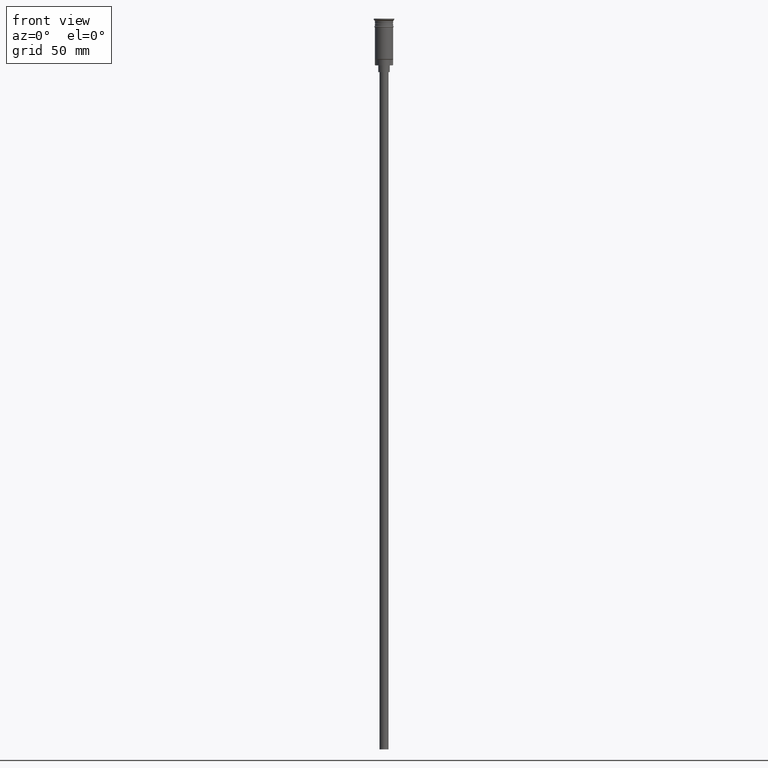
[diagram: clean part render]
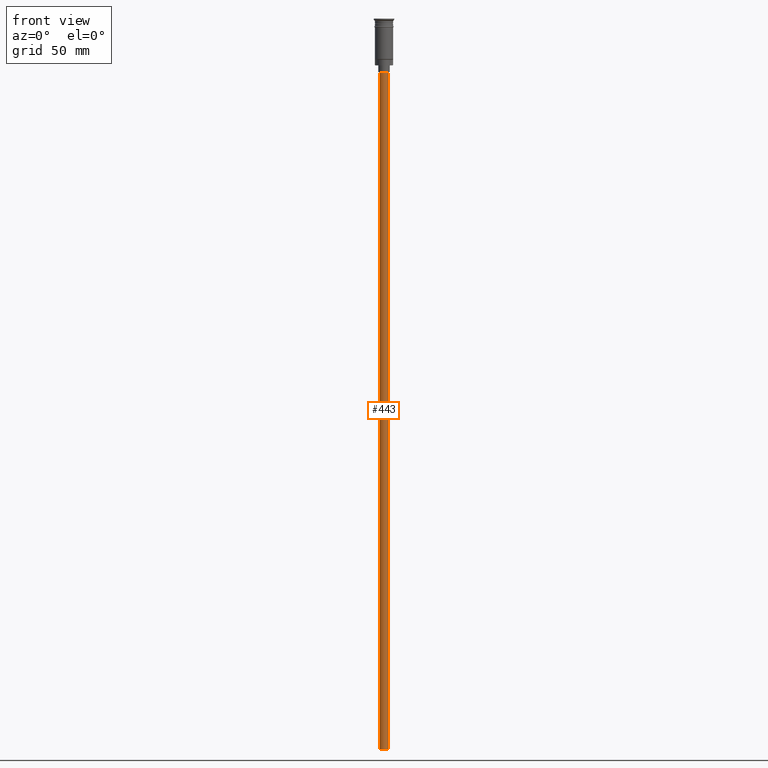
[diagram: same view with one face highlighted and labeled with its STEP entity id]
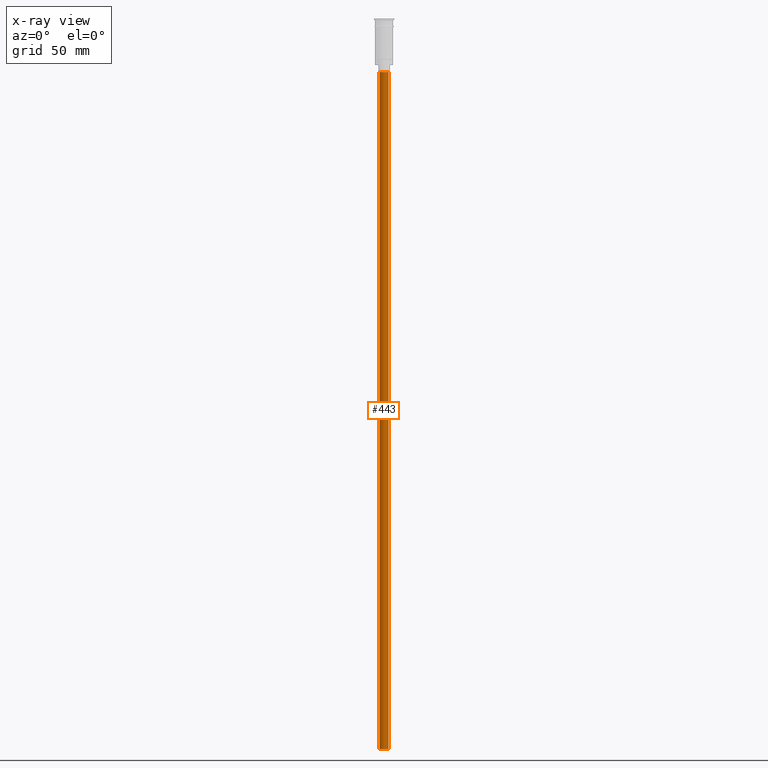
[diagram: x-ray of the same camera — body ghosted, the highlighted face saturated]
A machine part, front view. The second image highlights one B-rep face of the part: STEP entity #443.
The next image is the same camera in x-ray: the body ghosted, the highlighted face saturated — about 0% of this face is hidden behind the body in this view.
In plain terms, the highlighted cylindrical surface (edge-blend (fillet) strip) has radius 2 mm, axis along (-0, -0, 1).
Its self-contained STEP definition (entity closure, byte-faithful):
#215 = VERTEX_POINT ( 'NONE', #575 ) ;
#246 = DIRECTION ( 'NONE',  ( 1.000000000000000000, 0.000000000000000000, 0.000000000000000000 ) ) ;
#295 = VERTEX_POINT ( 'NONE', #307 ) ;
#307 = CARTESIAN_POINT ( 'NONE',  ( 2.000000000000000000, 0.000000000000000000, -23.49999999999999645 ) ) ;
#362 = CYLINDRICAL_SURFACE ( 'NONE', #1187, 2.000000000000000000 ) ;
#371 = DIRECTION ( 'NONE',  ( -0.000000000000000000, -0.000000000000000000, 1.000000000000000000 ) ) ;
#423 = DIRECTION ( 'NONE',  ( 0.000000000000000000, 0.000000000000000000, -1.000000000000000000 ) ) ;
#443 = ADVANCED_FACE ( 'NONE', ( #995 ), #362, .T. ) ;
#449 = CARTESIAN_POINT ( 'NONE',  ( 2.000000000000000000, 0.000000000000000000, -320.5000000000000000 ) ) ;
#547 = LINE ( 'NONE', #1414, #1014 ) ;
#562 = ORIENTED_EDGE ( 'NONE', *, *, #653, .F. ) ;
#575 = CARTESIAN_POINT ( 'NONE',  ( -2.000000000000000000, 2.449293598294706414E-16, -23.49999999999999645 ) ) ;
#612 = DIRECTION ( 'NONE',  ( -1.000000000000000000, 0.000000000000000000, 0.000000000000000000 ) ) ;
#645 = CIRCLE ( 'NONE', #1189, 2.000000000000000000 ) ;
#653 = EDGE_CURVE ( 'NONE', #1361, #1394, #645, .T. ) ;
#670 = EDGE_CURVE ( 'NONE', #1394, #215, #547, .T. ) ;
#769 = CIRCLE ( 'NONE', #948, 2.000000000000000000 ) ;
#798 = DIRECTION ( 'NONE',  ( -0.000000000000000000, -0.000000000000000000, 1.000000000000000000 ) ) ;
#935 = CARTESIAN_POINT ( 'NONE',  ( 0.000000000000000000, 0.000000000000000000, -320.5000000000000000 ) ) ;
#948 = AXIS2_PLACEMENT_3D ( 'NONE', #1127, #1350, #612 ) ;
#995 = FACE_OUTER_BOUND ( 'NONE', #1430, .T. ) ;
#1014 = VECTOR ( 'NONE', #798, 1000.000000000000000 ) ;
#1098 = DIRECTION ( 'NONE',  ( -0.000000000000000000, -0.000000000000000000, 1.000000000000000000 ) ) ;
#1112 = ORIENTED_EDGE ( 'NONE', *, *, #670, .F. ) ;
#1127 = CARTESIAN_POINT ( 'NONE',  ( 0.000000000000000000, 0.000000000000000000, -23.49999999999999645 ) ) ;
#1169 = DIRECTION ( 'NONE',  ( -1.000000000000000000, 0.000000000000000000, 0.000000000000000000 ) ) ;
#1187 = AXIS2_PLACEMENT_3D ( 'NONE', #1571, #371, #246 ) ;
#1189 = AXIS2_PLACEMENT_3D ( 'NONE', #935, #423, #1169 ) ;
#1208 = CARTESIAN_POINT ( 'NONE',  ( -2.000000000000000000, 2.449293598294706414E-16, -320.5000000000000000 ) ) ;
#1312 = EDGE_CURVE ( 'NONE', #1361, #295, #1432, .T. ) ;
#1316 = CARTESIAN_POINT ( 'NONE',  ( 2.000000000000000000, 0.000000000000000000, -320.5000000000000000 ) ) ;
#1350 = DIRECTION ( 'NONE',  ( 0.000000000000000000, 0.000000000000000000, -1.000000000000000000 ) ) ;
#1361 = VERTEX_POINT ( 'NONE', #449 ) ;
#1365 = ORIENTED_EDGE ( 'NONE', *, *, #1457, .T. ) ;
#1390 = ORIENTED_EDGE ( 'NONE', *, *, #1312, .T. ) ;
#1394 = VERTEX_POINT ( 'NONE', #1208 ) ;
#1414 = CARTESIAN_POINT ( 'NONE',  ( -2.000000000000000000, 2.449293598294706414E-16, -320.5000000000000000 ) ) ;
#1430 = EDGE_LOOP ( 'NONE', ( #1112, #562, #1390, #1365 ) ) ;
#1432 = LINE ( 'NONE', #1316, #1439 ) ;
#1439 = VECTOR ( 'NONE', #1098, 1000.000000000000000 ) ;
#1457 = EDGE_CURVE ( 'NONE', #295, #215, #769, .T. ) ;
#1571 = CARTESIAN_POINT ( 'NONE',  ( 0.000000000000000000, 0.000000000000000000, -320.5000000000000000 ) ) ;